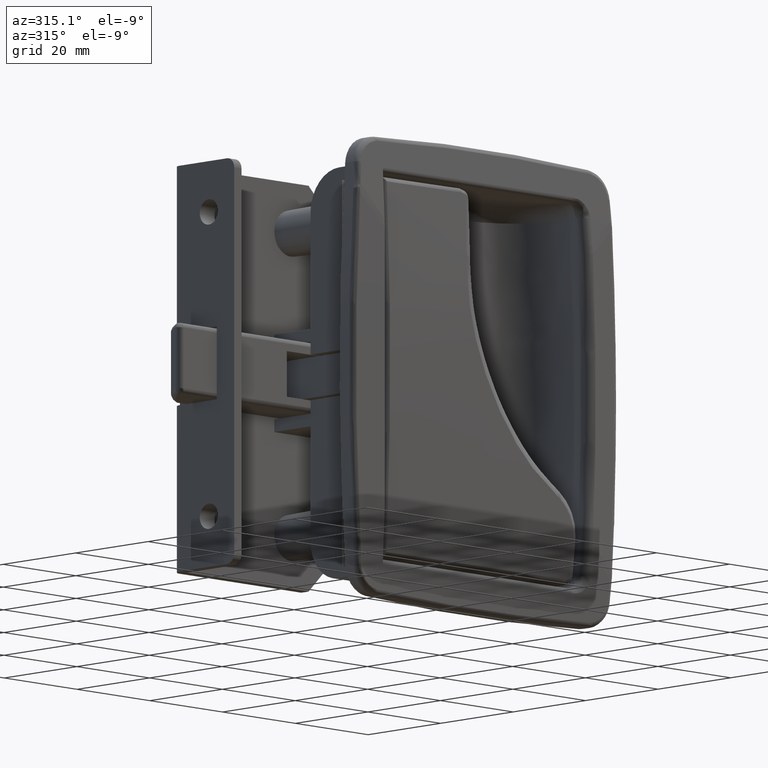
[diagram: clean part render]
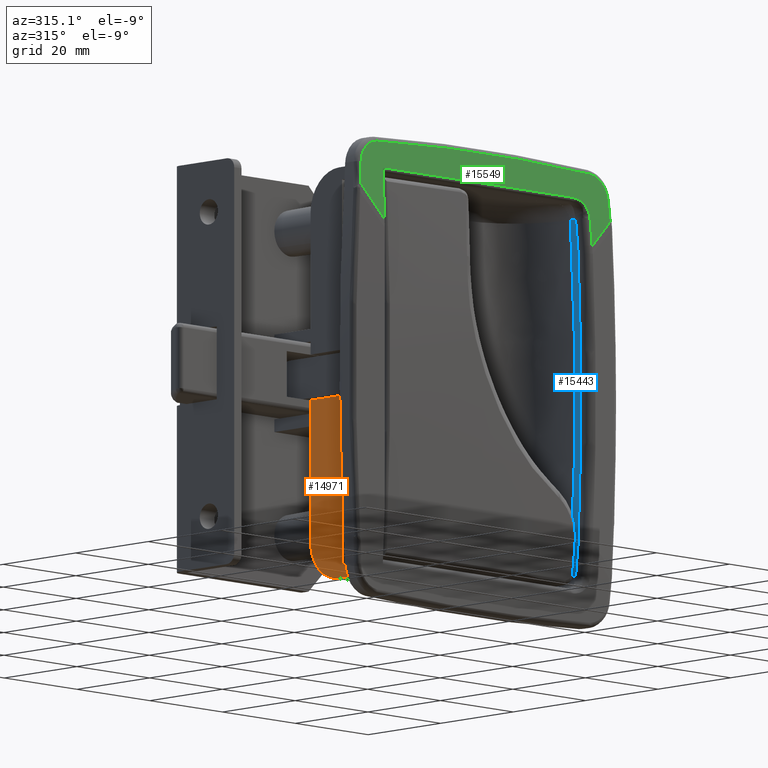
[diagram: same view with three faces highlighted in distinct colors, each labeled with its STEP entity id]
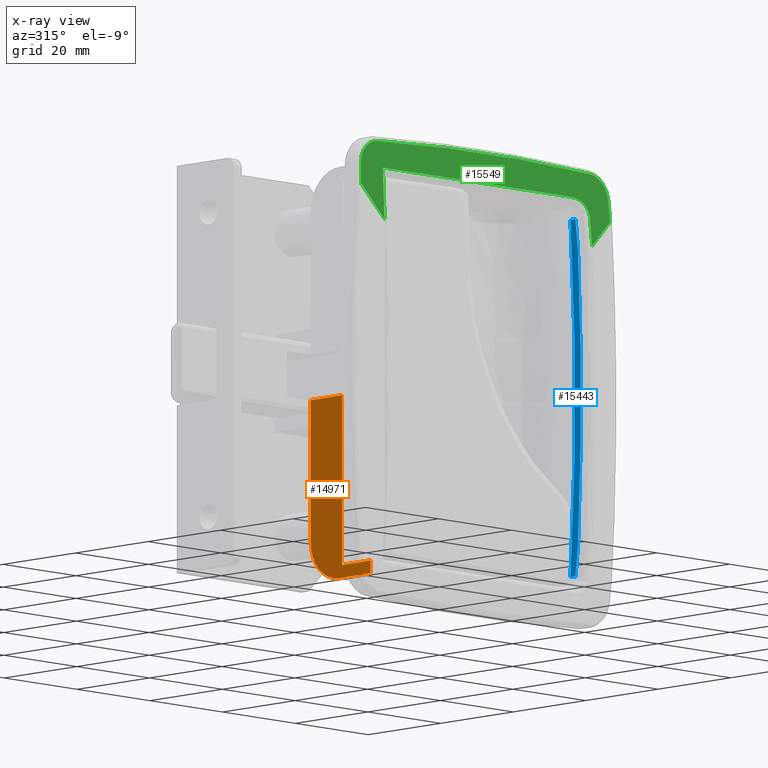
[diagram: x-ray of the same camera — body ghosted, the three highlighted faces saturated]
A machine part, auxiliary view with three faces highlighted in distinct colors.
The next image is the same camera in x-ray (body ghosted, the three faces saturated) — at least one of them is partly hidden behind the body in this view.
Their STEP definitions:

[orange] entity #14971 — the highlighted face is a freeform B-spline surface patch.
#8819=CARTESIAN_POINT('',(-27.706311111111201,-12.199999999999999,-30.000200000000000));
#8820=VERTEX_POINT('',#8819);
#8860=CARTESIAN_POINT('',(-27.860148148148198,-21.0,-38.0));
#8861=VERTEX_POINT('',#8860);
#8874=CARTESIAN_POINT('',(-27.860148148148198,-21.0,-4.499999999999784));
#8875=VERTEX_POINT('',#8874);
#8881=CARTESIAN_POINT('',(-27.860148148148198,-21.0,-4.499999999999784));
#8882=CARTESIAN_POINT('',(-27.860148148148198,-21.0,-38.0));
#8883=QUASI_UNIFORM_CURVE('',1,(#8881,#8882),.UNSPECIFIED.,.F.,.U.);
#8884=EDGE_CURVE('',#8875,#8861,#8883,.T.);
#13823=CARTESIAN_POINT('',(-27.706311111111201,-12.199999999999999,-4.499999999999949));
#13824=VERTEX_POINT('',#13823);
#13825=CARTESIAN_POINT('',(-27.706311111111201,-12.199999999999999,-4.499999999999949));
#13826=CARTESIAN_POINT('',(-27.860148148148198,-21.0,-4.499999999999784));
#13827=QUASI_UNIFORM_CURVE('',1,(#13825,#13826),.UNSPECIFIED.,.F.,.U.);
#13828=EDGE_CURVE('',#13824,#8875,#13827,.T.);
#14885=CARTESIAN_POINT('',(-28.0,-29.0,-38.0));
#14886=VERTEX_POINT('',#14885);
#14892=CARTESIAN_POINT('',(-28.0,-29.0,-40.500000000000000));
#14893=VERTEX_POINT('',#14892);
#14894=CARTESIAN_POINT('',(-28.0,-29.0,-40.500000000000000));
#14895=CARTESIAN_POINT('',(-28.0,-29.0,-38.0));
#14896=QUASI_UNIFORM_CURVE('',1,(#14894,#14895),.UNSPECIFIED.,.F.,.U.);
#14897=EDGE_CURVE('',#14893,#14886,#14896,.T.);
#14914=CARTESIAN_POINT('',(-27.706311111111201,-12.199999999999999,-32.500000000000000));
#14915=VERTEX_POINT('',#14914);
#14921=CARTESIAN_POINT('',(-27.706311111111201,-12.199999999999999,-30.000200000000000));
#14922=CARTESIAN_POINT('',(-27.706311111111201,-12.199999999999999,-32.500000000000000));
#14923=QUASI_UNIFORM_CURVE('',1,(#14921,#14922),.UNSPECIFIED.,.F.,.U.);
#14924=EDGE_CURVE('',#8820,#14915,#14923,.T.);
#14929=CARTESIAN_POINT('',(-28.014669759430792,-29.839159967438349,-42.298199930225017));
#14930=CARTESIAN_POINT('',(-27.691641343803081,-11.360839581950540,-42.298199930225017));
#14931=CARTESIAN_POINT('',(-28.014669759430792,-29.839159967438349,-2.701799104179515));
#14932=CARTESIAN_POINT('',(-27.691641343803081,-11.360839581950540,-2.701799104179515));
#14933=B_SPLINE_SURFACE_WITH_KNOTS('',1,1,((#14929,#14931),(#14930,#14932)),.UNSPECIFIED.,.F.,.F.,.U.,(2,2),(2,2),(0.0,18.481143677436119),(0.0,39.596400826045510),.UNSPECIFIED.);
#14934=ORIENTED_EDGE('',*,*,#14924,.T.);
#14935=CARTESIAN_POINT('',(-27.846162962963000,-20.199999999999999,-40.500000000000000));
#14936=VERTEX_POINT('',#14935);
#14937=CARTESIAN_POINT('',(-27.706311111111201,-12.199999999999999,-32.500000000000000));
#14938=CARTESIAN_POINT('',(-27.706304359723759,-12.199613797751921,-33.318248464399701));
#14939=CARTESIAN_POINT('',(-27.709856473555039,-12.402806749965951,-34.627042148896130));
#14940=CARTESIAN_POINT('',(-27.721907180753249,-13.092148051557359,-36.262465658410612));
#14941=CARTESIAN_POINT('',(-27.737561765851002,-13.987643385540100,-37.639236097400257));
#14942=CARTESIAN_POINT('',(-27.758080591786200,-15.161389784384490,-38.798659114005567));
#14943=CARTESIAN_POINT('',(-27.780008372437909,-16.415733169111821,-39.581990110782961));
#14944=CARTESIAN_POINT('',(-27.798915391484169,-17.497278750148240,-40.053449115210903));
#14945=CARTESIAN_POINT('',(-27.819849764968659,-18.694795877450382,-40.400688982877092));
#14946=CARTESIAN_POINT('',(-27.836438215114558,-19.643711457802500,-40.500134088918728));
#14947=CARTESIAN_POINT('',(-27.846162962963000,-20.199999999999999,-40.500000000000000));
#14948=B_SPLINE_CURVE_WITH_KNOTS('',3,(#14937,#14938,#14939,#14940,#14941,#14942,#14943,#14944,#14945,#14946,#14947),.UNSPECIFIED.,.F.,.U.,(4,1,1,1,1,1,1,1,4),(0.000000088871102,2.454568652087460,3.927328528235645,5.301905435439243,7.363714785627424,8.836461207017807,9.720117284460358,10.898313995867071,12.567418741303310),.UNSPECIFIED.);
#14949=EDGE_CURVE('',#14915,#14936,#14948,.T.);
#14950=ORIENTED_EDGE('',*,*,#14949,.T.);
#14951=CARTESIAN_POINT('',(-27.846162962963000,-20.199999999999999,-40.500000000000000));
#14952=CARTESIAN_POINT('',(-28.0,-29.0,-40.500000000000000));
#14953=QUASI_UNIFORM_CURVE('',1,(#14951,#14952),.UNSPECIFIED.,.F.,.U.);
#14954=EDGE_CURVE('',#14936,#14893,#14953,.T.);
#14955=ORIENTED_EDGE('',*,*,#14954,.T.);
#14956=ORIENTED_EDGE('',*,*,#14897,.T.);
#14957=CARTESIAN_POINT('',(-28.0,-29.0,-38.0));
#14958=CARTESIAN_POINT('',(-27.860148148148198,-21.0,-38.0));
#14959=QUASI_UNIFORM_CURVE('',1,(#14957,#14958),.UNSPECIFIED.,.F.,.U.);
#14960=EDGE_CURVE('',#14886,#8861,#14959,.T.);
#14961=ORIENTED_EDGE('',*,*,#14960,.T.);
#14962=ORIENTED_EDGE('',*,*,#8884,.F.);
#14963=ORIENTED_EDGE('',*,*,#13828,.F.);
#14964=CARTESIAN_POINT('',(-27.706311111111201,-12.199999999999999,-4.499999999999949));
#14965=CARTESIAN_POINT('',(-27.706311111111201,-12.199999999999999,-30.000200000000000));
#14966=QUASI_UNIFORM_CURVE('',1,(#14964,#14965),.UNSPECIFIED.,.F.,.U.);
#14967=EDGE_CURVE('',#13824,#8820,#14966,.T.);
#14968=ORIENTED_EDGE('',*,*,#14967,.T.);
#14969=EDGE_LOOP('',(#14934,#14950,#14955,#14956,#14961,#14962,#14963,#14968));
#14970=FACE_OUTER_BOUND('',#14969,.T.);
#14971=ADVANCED_FACE('',(#14970),#14933,.F.);

[blue] entity #15443 — the highlighted face is a freeform B-spline surface patch.
#9126=CARTESIAN_POINT('',(26.758622791532201,-30.604169728557949,-35.211307289764001));
#9127=VERTEX_POINT('',#9126);
#9231=CARTESIAN_POINT('',(27.113537786941901,-30.860131355958551,-29.761478573797952));
#9232=VERTEX_POINT('',#9231);
#9244=CARTESIAN_POINT('',(26.758622791532201,-30.604169728557949,-35.211307289764001));
#9245=CARTESIAN_POINT('',(27.113537786941901,-30.860131355958551,-29.761478573797952));
#9246=QUASI_UNIFORM_CURVE('',1,(#9244,#9245),.UNSPECIFIED.,.F.,.U.);
#9247=EDGE_CURVE('',#9127,#9232,#9246,.T.);
#9308=CARTESIAN_POINT('',(27.196989141972651,-30.889219502057500,-28.327593194271849));
#9309=VERTEX_POINT('',#9308);
#9322=CARTESIAN_POINT('',(27.113537786941901,-30.860131355958551,-29.761478573797952));
#9323=CARTESIAN_POINT('',(27.196989141972651,-30.889219502057500,-28.327593194271849));
#9324=QUASI_UNIFORM_CURVE('',1,(#9322,#9323),.UNSPECIFIED.,.F.,.U.);
#9325=EDGE_CURVE('',#9232,#9309,#9324,.T.);
#9388=CARTESIAN_POINT('',(27.197345827099848,-30.889204510851400,28.327967213543950));
#9389=VERTEX_POINT('',#9388);
#9402=CARTESIAN_POINT('',(27.196989141972651,-30.889219502057500,-28.327593194271849));
#9403=CARTESIAN_POINT('',(27.254569357953962,-30.886799591181781,-27.279426471170030));
#9404=CARTESIAN_POINT('',(27.369729717387980,-30.881959772479629,-25.183094345244641));
#9405=CARTESIAN_POINT('',(27.517351379151190,-30.875756583052389,-22.037295222003980));
#9406=CARTESIAN_POINT('',(27.646576948009091,-30.870326840192540,-18.890704624268640));
#9407=CARTESIAN_POINT('',(27.755598388219600,-30.865746399319640,-15.743344890375450));
#9408=CARTESIAN_POINT('',(27.844894514019799,-30.861994935061940,-12.595368370290100));
#9409=CARTESIAN_POINT('',(27.914332377492780,-30.859077893613371,-9.446892609685405));
#9410=CARTESIAN_POINT('',(27.963943953335370,-30.856993815538150,-6.298044505583258));
#9411=CARTESIAN_POINT('',(27.993718008118570,-30.855743092392022,-3.148948469709340));
#9412=CARTESIAN_POINT('',(28.003655940259730,-30.855325617387120,0.000270410241956));
#9413=CARTESIAN_POINT('',(27.993756551021860,-30.855741426119550,3.149487208783639));
#9414=CARTESIAN_POINT('',(27.964021120858881,-30.856990482992689,6.298577000937264));
#9415=CARTESIAN_POINT('',(27.914448333087890,-30.859072894797059,9.447414700600445));
#9416=CARTESIAN_POINT('',(27.845049502715760,-30.861988269967291,12.595875898521330));
#9417=CARTESIAN_POINT('',(27.755792737184699,-30.865738067972821,15.743833701780529));
#9418=CARTESIAN_POINT('',(27.646811063948078,-30.870316842504799,18.891170567624819));
#9419=CARTESIAN_POINT('',(27.517625759083462,-30.875744919320670,22.037734158409389));
#9420=CARTESIAN_POINT('',(27.370044903355740,-30.881946441722839,25.183502117669310));
#9421=CARTESIAN_POINT('',(27.254912183176309,-30.886785154587450,27.279812230302259));
#9422=CARTESIAN_POINT('',(27.197345827099848,-30.889204510851400,28.327967213543950));
#9423=B_SPLINE_CURVE_WITH_KNOTS('',3,(#9402,#9403,#9404,#9405,#9406,#9407,#9408,#9409,#9410,#9411,#9412,#9413,#9414,#9415,#9416,#9417,#9418,#9419,#9420,#9421,#9422),.UNSPECIFIED.,.F.,.U.,(4,1,1,1,1,1,1,1,1,1,1,1,1,1,1,1,1,1,4),(0.0,0.055555974050515,0.111111878122415,0.166667716105144,0.222223491888147,0.277779209360896,0.333334872412882,0.388890484933575,0.444446050812489,0.500001573939135,0.555557058203031,0.611112507493706,0.666667925700701,0.722223316713549,0.777778684421803,0.833334032715016,0.888889365482747,0.944444686614554,1.000000000000000),.UNSPECIFIED.);
#9424=EDGE_CURVE('',#9309,#9389,#9423,.T.);
#9504=CARTESIAN_POINT('',(27.113910496989199,-30.860114897629849,29.761887682028249));
#9505=VERTEX_POINT('',#9504);
#9518=CARTESIAN_POINT('',(27.197345827099848,-30.889204510851400,28.327967213543950));
#9519=CARTESIAN_POINT('',(27.113910496989199,-30.860114897629849,29.761887682028249));
#9520=QUASI_UNIFORM_CURVE('',1,(#9518,#9519),.UNSPECIFIED.,.F.,.U.);
#9521=EDGE_CURVE('',#9389,#9505,#9520,.T.);
#9584=CARTESIAN_POINT('',(26.759081579812399,-30.604162881589399,35.211468298201751));
#9585=VERTEX_POINT('',#9584);
#9598=CARTESIAN_POINT('',(27.113910496989199,-30.860114897629849,29.761887682028249));
#9599=CARTESIAN_POINT('',(26.759081579812399,-30.604162881589399,35.211468298201751));
#9600=QUASI_UNIFORM_CURVE('',1,(#9598,#9599),.UNSPECIFIED.,.F.,.U.);
#9601=EDGE_CURVE('',#9505,#9585,#9600,.T.);
#12568=CARTESIAN_POINT('',(26.758622791532051,-29.199999999999999,-35.211307289764001));
#12569=VERTEX_POINT('',#12568);
#12856=CARTESIAN_POINT('',(26.759081579812449,-29.199999999999999,35.211468298201751));
#12857=VERTEX_POINT('',#12856);
#12966=CARTESIAN_POINT('',(26.758622791532179,-29.199999999999999,-35.211307289763973));
#12967=CARTESIAN_POINT('',(29.244937842971169,-29.199999999999999,0.000064307939087));
#12968=CARTESIAN_POINT('',(26.759081579812449,-29.199999999999999,35.211468298201751));
#12976=(BOUNDED_CURVE()B_SPLINE_CURVE(2,(#12966,#12967,#12968),.UNSPECIFIED.,.F.,.U.)CURVE()GEOMETRIC_REPRESENTATION_ITEM()QUASI_UNIFORM_CURVE()RATIONAL_B_SPLINE_CURVE((1.0,0.997516776139182,1.0))REPRESENTATION_ITEM(''));
#12977=EDGE_CURVE('',#12569,#12857,#12976,.T.);
#13016=CARTESIAN_POINT('',(26.758622791532201,-30.604169728557949,-35.211307289764001));
#13017=CARTESIAN_POINT('',(26.758622791532051,-29.199999999999999,-35.211307289764001));
#13018=QUASI_UNIFORM_CURVE('',1,(#13016,#13017),.UNSPECIFIED.,.F.,.U.);
#13019=EDGE_CURVE('',#9127,#12569,#13018,.T.);
#13039=CARTESIAN_POINT('',(26.759081579812449,-29.199999999999999,35.211468298201751));
#13040=CARTESIAN_POINT('',(26.759081579812399,-30.604162881589399,35.211468298201751));
#13041=QUASI_UNIFORM_CURVE('',1,(#13039,#13040),.UNSPECIFIED.,.F.,.U.);
#13042=EDGE_CURVE('',#12857,#9585,#13041,.T.);
#15419=CARTESIAN_POINT('',(26.499236843947664,-29.157769512448564,38.716650710810157));
#15420=CARTESIAN_POINT('',(26.499236843947664,-30.932505751797724,38.716650710810157));
#15421=CARTESIAN_POINT('',(29.506420937829365,-29.157769512448557,-0.002305512205700));
#15422=CARTESIAN_POINT('',(29.506420937829365,-30.932505751797724,-0.002305512205700));
#15423=CARTESIAN_POINT('',(26.498366658231088,-29.157769512448553,-38.721194140694301));
#15424=CARTESIAN_POINT('',(26.498366658231088,-30.932505751797731,-38.721194140694301));
#15432=(BOUNDED_SURFACE()B_SPLINE_SURFACE(1,2,((#15419,#15421,#15423),(#15420,#15422,#15424)),.UNSPECIFIED.,.F.,.F.,.U.)B_SPLINE_SURFACE_WITH_KNOTS((2,2),(3,3),(0.0,1.0),(17.609950515079500,95.164248017024988),.UNSPECIFIED.)GEOMETRIC_REPRESENTATION_ITEM()RATIONAL_B_SPLINE_SURFACE(((0.998003145779610,0.994306683182898,0.996601251983573),(0.998003145779610,0.994306683182898,0.996601251983573)))REPRESENTATION_ITEM('')SURFACE());
#15433=ORIENTED_EDGE('',*,*,#13019,.F.);
#15434=ORIENTED_EDGE('',*,*,#9247,.T.);
#15435=ORIENTED_EDGE('',*,*,#9325,.T.);
#15436=ORIENTED_EDGE('',*,*,#9424,.T.);
#15437=ORIENTED_EDGE('',*,*,#9521,.T.);
#15438=ORIENTED_EDGE('',*,*,#9601,.T.);
#15439=ORIENTED_EDGE('',*,*,#13042,.F.);
#15440=ORIENTED_EDGE('',*,*,#12977,.F.);
#15441=EDGE_LOOP('',(#15433,#15434,#15435,#15436,#15437,#15438,#15439,#15440));
#15442=FACE_OUTER_BOUND('',#15441,.T.);
#15443=ADVANCED_FACE('',(#15442),#15432,.F.);

[green] entity #15549 — the highlighted face is a freeform B-spline surface patch.
#9502=CARTESIAN_POINT('',(29.110364413337098,-32.858281415961152,29.966551601964799));
#9503=VERTEX_POINT('',#9502);
#9582=CARTESIAN_POINT('',(28.754116049709701,-32.601596013055143,35.453609858503512));
#9583=VERTEX_POINT('',#9582);
#9604=CARTESIAN_POINT('',(28.754116049709701,-32.601596013055143,35.453609858503512));
#9605=CARTESIAN_POINT('',(29.110364413337098,-32.858281415961152,29.966551601964799));
#9606=QUASI_UNIFORM_CURVE('',1,(#9604,#9605),.UNSPECIFIED.,.F.,.U.);
#9607=EDGE_CURVE('',#9583,#9503,#9606,.T.);
#9670=CARTESIAN_POINT('',(23.766529874966750,-32.409600242401048,39.055994277539149));
#9671=VERTEX_POINT('',#9670);
#9704=CARTESIAN_POINT('',(23.766529874966750,-32.409600242401048,39.055994277539149));
#9705=CARTESIAN_POINT('',(23.920078753152520,-32.409710728780126,39.054017410821288));
#9706=CARTESIAN_POINT('',(24.220303977007990,-32.409926756394867,39.050152157880888));
#9707=CARTESIAN_POINT('',(24.659735341070050,-32.411767412522167,39.017200993871512));
#9708=CARTESIAN_POINT('',(25.077596687848160,-32.414733936509258,38.964035070032210));
#9709=CARTESIAN_POINT('',(25.473897080539938,-32.418918264005093,38.888920438274738));
#9710=CARTESIAN_POINT('',(25.848642940247291,-32.424291363460910,38.792251528792043));
#9711=CARTESIAN_POINT('',(26.201804252919999,-32.430852394345443,38.673881439502679));
#9712=CARTESIAN_POINT('',(26.533434201019610,-32.438590935174403,38.533799832742773));
#9713=CARTESIAN_POINT('',(27.004713691820381,-32.452139001288486,38.287583822213712));
#9714=CARTESIAN_POINT('',(27.581208315117301,-32.475235473626782,37.864814919484687));
#9715=CARTESIAN_POINT('',(28.073641842393499,-32.506164522219613,37.289323622179502));
#9716=CARTESIAN_POINT('',(28.389861224123582,-32.533780903138762,36.767274901818581));
#9717=CARTESIAN_POINT('',(28.576043250812880,-32.556015638886791,36.342041198065687));
#9718=CARTESIAN_POINT('',(28.704609447399360,-32.578692368491502,35.903568403339108));
#9719=CARTESIAN_POINT('',(28.737612876789310,-32.593961015113308,35.603604875854003));
#9720=CARTESIAN_POINT('',(28.754116049709701,-32.601596013055143,35.453609858503512));
#9721=B_SPLINE_CURVE_WITH_KNOTS('',3,(#9704,#9705,#9706,#9707,#9708,#9709,#9710,#9711,#9712,#9713,#9714,#9715,#9716,#9717,#9718,#9719,#9720),.UNSPECIFIED.,.F.,.U.,(4,1,1,1,1,1,1,1,1,1,1,1,1,1,4),(0.0,0.067638316763087,0.132249281345322,0.194011490475625,0.253129365029131,0.309835930693074,0.364395118458340,0.417103127643324,0.468288304962446,0.598541661391967,0.729296298573367,0.799411319615642,0.867098009759051,0.933543132729108,1.000000000000000),.UNSPECIFIED.);
#9722=EDGE_CURVE('',#9671,#9583,#9721,.T.);
#9743=CARTESIAN_POINT('',(-28.0,-32.409600242401048,39.055994277539149));
#9744=VERTEX_POINT('',#9743);
#9763=CARTESIAN_POINT('',(-28.0,-32.409600242401048,39.055994277539149));
#9764=CARTESIAN_POINT('',(23.766529874966750,-32.409600242401048,39.055994277539149));
#9765=QUASI_UNIFORM_CURVE('',1,(#9763,#9764),.UNSPECIFIED.,.F.,.U.);
#9766=EDGE_CURVE('',#9744,#9671,#9765,.T.);
#9837=CARTESIAN_POINT('',(34.275657996402103,-32.610188658537652,35.283765584527949));
#9838=VERTEX_POINT('',#9837);
#9839=CARTESIAN_POINT('',(29.110364413337098,-32.858281415961152,29.966551601964799));
#9840=CARTESIAN_POINT('',(34.275657996402103,-32.610188658537652,35.283765584527949));
#9841=QUASI_UNIFORM_CURVE('',1,(#9839,#9840),.UNSPECIFIED.,.F.,.U.);
#9842=EDGE_CURVE('',#9503,#9838,#9841,.T.);
#9925=CARTESIAN_POINT('',(-28.0,-32.906322642460303,28.823529411762600));
#9926=VERTEX_POINT('',#9925);
#9934=CARTESIAN_POINT('',(-34.275490666195097,-32.610197351977803,35.283593332860853));
#9935=VERTEX_POINT('',#9934);
#9936=CARTESIAN_POINT('',(-34.275490666195097,-32.610197351977803,35.283593332860853));
#9937=CARTESIAN_POINT('',(-28.0,-32.906322642460303,28.823529411762600));
#9938=QUASI_UNIFORM_CURVE('',1,(#9936,#9937),.UNSPECIFIED.,.F.,.U.);
#9939=EDGE_CURVE('',#9935,#9926,#9938,.T.);
#10159=CARTESIAN_POINT('',(33.957598184905997,-32.379234789505453,39.595645973204803));
#10160=VERTEX_POINT('',#10159);
#10161=CARTESIAN_POINT('',(34.275657996402103,-32.610188658537652,35.283765584527949));
#10162=CARTESIAN_POINT('',(33.957598184905997,-32.379234789505453,39.595645973204803));
#10163=QUASI_UNIFORM_CURVE('',1,(#10161,#10162),.UNSPECIFIED.,.F.,.U.);
#10164=EDGE_CURVE('',#9838,#10160,#10163,.T.);
#10489=CARTESIAN_POINT('',(29.266042450092399,-32.102891453412447,44.204072809317800));
#10490=VERTEX_POINT('',#10489);
#10502=CARTESIAN_POINT('',(33.957598184905997,-32.379234789505453,39.595645973204803));
#10503=CARTESIAN_POINT('',(33.927723713402351,-32.356439038073468,39.986619276798322));
#10504=CARTESIAN_POINT('',(33.811437003519387,-32.321895645255388,40.576926347878697));
#10505=CARTESIAN_POINT('',(33.462939624536872,-32.269605102875197,41.465286251633202));
#10506=CARTESIAN_POINT('',(33.026821376335143,-32.226713291385479,42.189419057193270));
#10507=CARTESIAN_POINT('',(32.437301613488387,-32.187566376018530,42.844525905491352));
#10508=CARTESIAN_POINT('',(31.796807940646779,-32.156232098064912,43.363782344346141));
#10509=CARTESIAN_POINT('',(31.112217587396561,-32.132285290163267,43.754705741356368));
#10510=CARTESIAN_POINT('',(30.251300517051181,-32.112117057348300,44.075329589004689));
#10511=CARTESIAN_POINT('',(29.639442685390961,-32.104850480145281,44.181709296626721));
#10512=CARTESIAN_POINT('',(29.266042450092399,-32.102891453412447,44.204072809317800));
#10513=B_SPLINE_CURVE_WITH_KNOTS('',3,(#10502,#10503,#10504,#10505,#10506,#10507,#10508,#10509,#10510,#10511,#10512),.UNSPECIFIED.,.F.,.U.,(4,1,1,1,1,1,1,1,4),(0.000000098949789,1.178307606258018,1.795529720266912,2.861631747667059,3.703254523314612,4.432710703501436,5.330475633110855,6.059914115005888,7.182116010673109),.UNSPECIFIED.);
#10514=EDGE_CURVE('',#10160,#10490,#10513,.T.);
#10666=CARTESIAN_POINT('',(-29.265781641767202,-32.102870275113453,44.204407510710851));
#10667=VERTEX_POINT('',#10666);
#10678=CARTESIAN_POINT('',(29.266042450092399,-32.102891453412447,44.204072809317751));
#10679=CARTESIAN_POINT('',(19.510741729595630,-32.066574942224229,44.778020369150831));
#10680=CARTESIAN_POINT('',(0.000136985660794,-32.029285204643429,45.350540925595588));
#10681=CARTESIAN_POINT('',(-19.510474331644001,-32.066560547137641,44.778243506061187));
#10682=CARTESIAN_POINT('',(-29.265781641767209,-32.102870275113403,44.204407510710851));
#10683=B_SPLINE_CURVE_WITH_KNOTS('',3,(#10678,#10679,#10680,#10681,#10682),.UNSPECIFIED.,.F.,.U.,(4,1,4),(0.0,0.500000000000000,1.0),.UNSPECIFIED.);
#10684=EDGE_CURVE('',#10490,#10667,#10683,.T.);
#10999=CARTESIAN_POINT('',(-33.957394303100152,-32.379215961187199,39.595978299269099));
#11000=VERTEX_POINT('',#10999);
#11013=CARTESIAN_POINT('',(-29.265781641767202,-32.102870275113453,44.204407510710851));
#11014=CARTESIAN_POINT('',(-29.713850283239641,-32.105298691278563,44.177557204958092));
#11015=CARTESIAN_POINT('',(-30.472917492916210,-32.115454305206860,44.027877123599211));
#11016=CARTESIAN_POINT('',(-31.397403816619619,-32.141436327051842,43.610806748948633));
#11017=CARTESIAN_POINT('',(-32.097417098046819,-32.170073102882007,43.140423485594631));
#11018=CARTESIAN_POINT('',(-32.674554232351980,-32.202274392112372,42.604445695499820));
#11019=CARTESIAN_POINT('',(-33.191486499859352,-32.241912852699613,41.938188510654797));
#11020=CARTESIAN_POINT('',(-33.713949482803081,-32.299482128889053,40.962885679411549));
#11021=CARTESIAN_POINT('',(-33.916287454642060,-32.347826433957877,40.135936785345542));
#11022=CARTESIAN_POINT('',(-33.957394303100152,-32.379215961187199,39.595978299269099));
#11023=B_SPLINE_CURVE_WITH_KNOTS('',3,(#11013,#11014,#11015,#11016,#11017,#11018,#11019,#11020,#11021,#11022),.UNSPECIFIED.,.F.,.U.,(4,1,1,1,1,1,1,4),(0.000000098885186,1.346603339152289,2.300455177403529,3.029873189329105,3.871488655770880,4.656996140789447,5.554750711109646,7.181896567776986),.UNSPECIFIED.);
#11024=EDGE_CURVE('',#10667,#11000,#11023,.T.);
#11159=CARTESIAN_POINT('',(-33.957394303100152,-32.379215961187199,39.595978299269099));
#11160=CARTESIAN_POINT('',(-34.275490666195097,-32.610197351977803,35.283593332860853));
#11161=QUASI_UNIFORM_CURVE('',1,(#11159,#11160),.UNSPECIFIED.,.F.,.U.);
#11162=EDGE_CURVE('',#11000,#9935,#11161,.T.);
#15477=CARTESIAN_POINT('',(-28.0,-32.906322642460303,28.823529411762578));
#15478=CARTESIAN_POINT('',(-27.999999999999996,-32.695400527374183,33.941579278901294));
#15479=CARTESIAN_POINT('',(-28.0,-32.409600242401027,39.055994277539163));
#15487=(BOUNDED_CURVE()B_SPLINE_CURVE(2,(#15477,#15478,#15479),.UNSPECIFIED.,.F.,.U.)CURVE()GEOMETRIC_REPRESENTATION_ITEM()QUASI_UNIFORM_CURVE()RATIONAL_B_SPLINE_CURVE((1.0,0.999973226664459,1.0))REPRESENTATION_ITEM(''));
#15488=EDGE_CURVE('',#9926,#9744,#15487,.T.);
#15522=CARTESIAN_POINT('',(35.989436712967034,-31.995165154456494,45.874876085371596));
#15523=CARTESIAN_POINT('',(-36.032113850674136,-31.995165154456494,45.874876085371596));
#15524=CARTESIAN_POINT('',(35.989436712967034,-32.581365083655420,36.949340992974825));
#15525=CARTESIAN_POINT('',(-36.032113850674143,-32.581365083655420,36.949340992974825));
#15526=CARTESIAN_POINT('',(35.989436712967048,-32.939305687679216,28.011741451342285));
#15527=CARTESIAN_POINT('',(-36.032113850674143,-32.939305687679216,28.011741451342285));
#15535=(BOUNDED_SURFACE()B_SPLINE_SURFACE(1,2,((#15522,#15524,#15526),(#15523,#15525,#15527)),.UNSPECIFIED.,.F.,.F.,.U.)B_SPLINE_SURFACE_WITH_KNOTS((2,2),(3,3),(0.0,72.021550563641185),(4.062357941389084,21.952993354082110),.UNSPECIFIED.)GEOMETRIC_REPRESENTATION_ITEM()RATIONAL_B_SPLINE_SURFACE(((0.999055992518252,0.998844603286260,0.998796318895588),(0.999055992518252,0.998844603286260,0.998796318895588)))REPRESENTATION_ITEM('')SURFACE());
#15536=ORIENTED_EDGE('',*,*,#15488,.T.);
#15537=ORIENTED_EDGE('',*,*,#9766,.T.);
#15538=ORIENTED_EDGE('',*,*,#9722,.T.);
#15539=ORIENTED_EDGE('',*,*,#9607,.T.);
#15540=ORIENTED_EDGE('',*,*,#9842,.T.);
#15541=ORIENTED_EDGE('',*,*,#10164,.T.);
#15542=ORIENTED_EDGE('',*,*,#10514,.T.);
#15543=ORIENTED_EDGE('',*,*,#10684,.T.);
#15544=ORIENTED_EDGE('',*,*,#11024,.T.);
#15545=ORIENTED_EDGE('',*,*,#11162,.T.);
#15546=ORIENTED_EDGE('',*,*,#9939,.T.);
#15547=EDGE_LOOP('',(#15536,#15537,#15538,#15539,#15540,#15541,#15542,#15543,#15544,#15545,#15546));
#15548=FACE_OUTER_BOUND('',#15547,.T.);
#15549=ADVANCED_FACE('',(#15548),#15535,.T.);